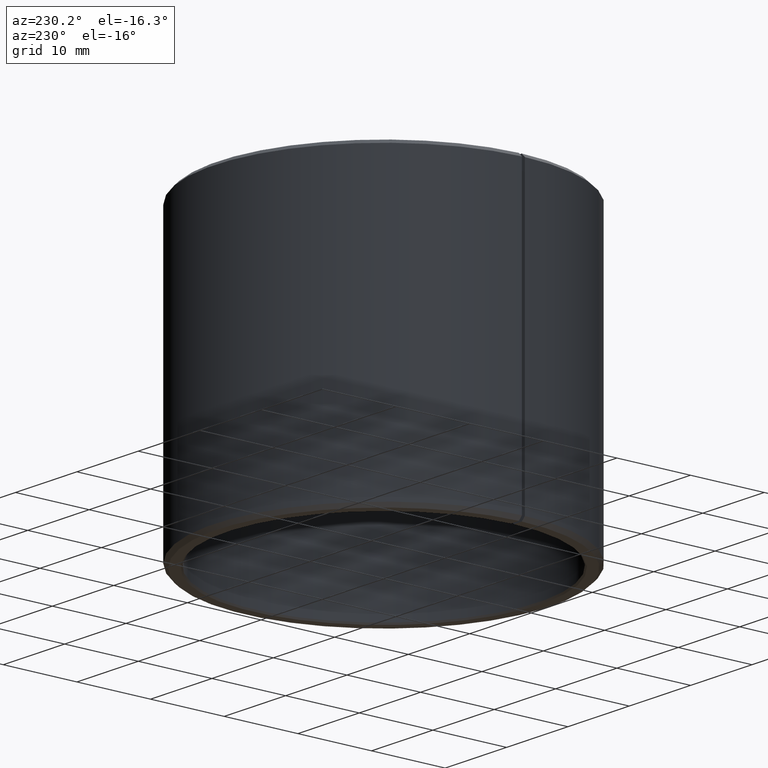
[diagram: clean part render]
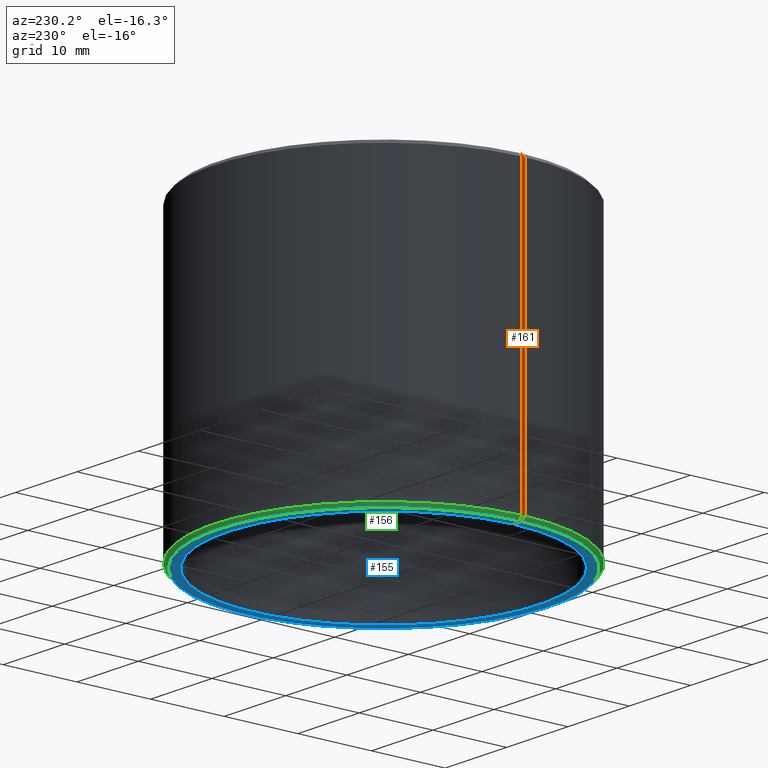
[diagram: same view with three faces highlighted in distinct colors, each labeled with its STEP entity id]
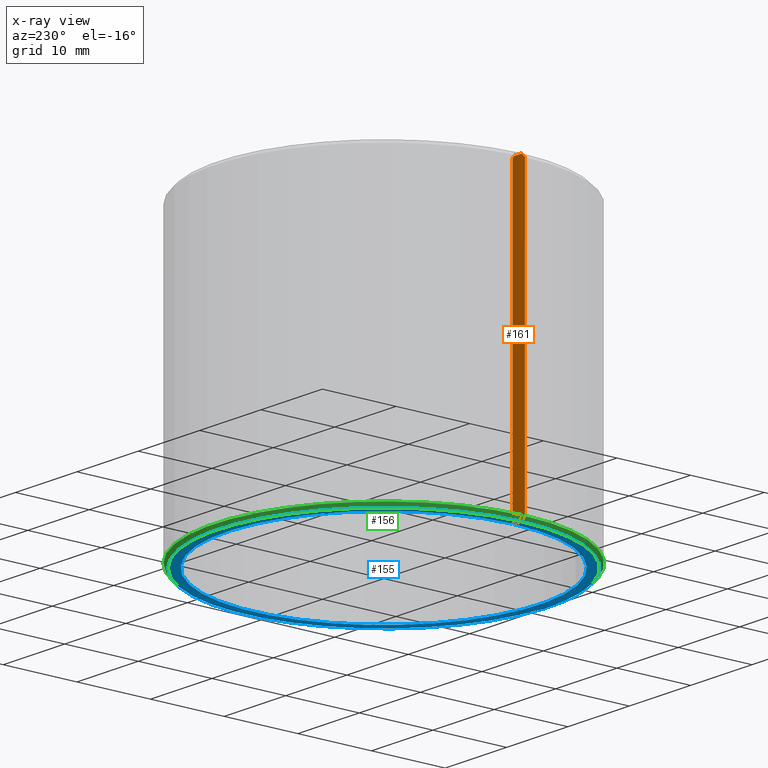
[diagram: x-ray of the same camera — body ghosted, the three highlighted faces saturated]
A machine part, auxiliary view with three faces highlighted in distinct colors.
The next image is the same camera in x-ray (body ghosted, the three faces saturated) — at least one of them is partly hidden behind the body in this view.
Their STEP definitions:

[orange] entity #161 — the highlighted planar face has unit normal (0, 1, 0).
#161=ADVANCED_FACE('',(#181),#182,.T.);
#181=FACE_OUTER_BOUND('',#202,.T.);
#182=PLANE('',#203);
#202=EDGE_LOOP('',(#262,#263,#264,#265,#266,#267,#268,#269));
#203=AXIS2_PLACEMENT_3D('',#270,#271,#272);
#262=ORIENTED_EDGE('',*,*,#306,.T.);
#263=ORIENTED_EDGE('',*,*,#285,.T.);
#264=ORIENTED_EDGE('',*,*,#289,.T.);
#265=ORIENTED_EDGE('',*,*,#292,.T.);
#266=ORIENTED_EDGE('',*,*,#295,.T.);
#267=ORIENTED_EDGE('',*,*,#298,.T.);
#268=ORIENTED_EDGE('',*,*,#301,.T.);
#269=ORIENTED_EDGE('',*,*,#305,.T.);
#270=CARTESIAN_POINT('',(-3.46944695195362E-018,-0.006,0.0));
#271=DIRECTION('',(1.0,0.0,0.0));
#272=DIRECTION('',(0.0,0.0,-1.0));
#285=EDGE_CURVE('',#311,#309,#312,.T.);
#289=EDGE_CURVE('',#309,#317,#319,.T.);
#292=EDGE_CURVE('',#317,#322,#324,.T.);
#295=EDGE_CURVE('',#322,#327,#329,.T.);
#298=EDGE_CURVE('',#327,#332,#334,.T.);
#301=EDGE_CURVE('',#332,#337,#339,.T.);
#305=EDGE_CURVE('',#337,#343,#345,.T.);
#306=EDGE_CURVE('',#343,#311,#346,.T.);
#309=VERTEX_POINT('',#349);
#311=VERTEX_POINT('',#351);
#312=LINE('',#352,#353);
#317=VERTEX_POINT('',#359);
#319=LINE('',#361,#362);
#322=VERTEX_POINT('',#366);
#324=LINE('',#368,#369);
#327=VERTEX_POINT('',#373);
#329=LINE('',#375,#376);
#332=VERTEX_POINT('',#380);
#334=LINE('',#382,#383);
#337=VERTEX_POINT('',#387);
#339=LINE('',#389,#390);
#343=VERTEX_POINT('',#396);
#345=LINE('',#398,#399);
#346=LINE('',#400,#401);
#349=CARTESIAN_POINT('',(-3.46944695195362E-018,0.021,0.0002));
#351=CARTESIAN_POINT('',(-6.07153216591882E-018,0.021,0.0398));
#352=CARTESIAN_POINT('',(-6.07153216591882E-018,0.021,0.0398));
#353=VECTOR('',#407,1.0);
#359=CARTESIAN_POINT('',(-3.46944695195362E-018,0.0212,9.21571846612679E-019));
#361=CARTESIAN_POINT('',(-3.46944695195362E-018,0.021,0.0002));
#362=VECTOR('',#415,1.0);
#366=CARTESIAN_POINT('',(-3.46944695195362E-018,0.0225,1.02999206386123E-018));
#368=CARTESIAN_POINT('',(-3.46944695195362E-018,0.0212,8.88767926719187E-019));
#369=VECTOR('',#420,1.0);
#373=CARTESIAN_POINT('',(-3.46944695195362E-018,0.023,0.0005));
#375=CARTESIAN_POINT('',(-3.46944695195362E-018,0.0225,1.02999206386123E-018));
#376=VECTOR('',#425,1.0);
#380=CARTESIAN_POINT('',(-6.07153216591882E-018,0.023,0.0395));
#382=CARTESIAN_POINT('',(-3.46944695195362E-018,0.023,0.0005));
#383=VECTOR('',#430,1.0);
#387=CARTESIAN_POINT('',(-6.07153216591882E-018,0.0225,0.04));
#389=CARTESIAN_POINT('',(-6.07153216591882E-018,0.023,0.0395));
#390=VECTOR('',#435,1.0);
#396=CARTESIAN_POINT('',(-6.07153216591882E-018,0.0212,0.04));
#398=CARTESIAN_POINT('',(-6.07153216591882E-018,0.0225,0.04));
#399=VECTOR('',#441,1.0);
#400=CARTESIAN_POINT('',(-6.07153216591882E-018,0.0212,0.04));
#401=VECTOR('',#442,1.0);
#407=DIRECTION('',(6.57092225748791E-017,1.75224593533011E-016,-1.0));
#415=DIRECTION('',(0.0,0.707106781186547,-0.707106781186548));
#420=DIRECTION('',(0.0,1.0,1.08633951647725E-016));
#425=DIRECTION('',(0.0,0.707106781186551,0.707106781186544));
#430=DIRECTION('',(-6.67201336914157E-017,-1.77920356510442E-016,1.0));
#435=DIRECTION('',(0.0,-0.707106781186548,0.707106781186548));
#441=DIRECTION('',(0.0,-1.0,0.0));
#442=DIRECTION('',(0.0,-0.707106781186535,-0.70710678118656));

[blue] entity #155 — the highlighted planar face has unit normal (-0, 0, -1).
#155=ADVANCED_FACE('',(#169),#170,.T.);
#169=FACE_OUTER_BOUND('',#190,.T.);
#170=PLANE('',#191);
#190=EDGE_LOOP('',(#220,#221,#222,#223));
#191=AXIS2_PLACEMENT_3D('',#224,#225,#226);
#220=ORIENTED_EDGE('',*,*,#291,.T.);
#221=ORIENTED_EDGE('',*,*,#292,.F.);
#222=ORIENTED_EDGE('',*,*,#288,.F.);
#223=ORIENTED_EDGE('',*,*,#293,.T.);
#224=CARTESIAN_POINT('',(0.000369991016470408,0.0211967711373155,9.98437370938642E-019));
#225=DIRECTION('',(6.12323399573677E-017,0.0,-1.0));
#226=DIRECTION('',(-1.0,0.0,-6.12323399573677E-017));
#288=EDGE_CURVE('',#316,#317,#318,.T.);
#291=EDGE_CURVE('',#321,#322,#323,.T.);
#292=EDGE_CURVE('',#317,#322,#324,.T.);
#293=EDGE_CURVE('',#316,#321,#325,.T.);
#316=VERTEX_POINT('',#358);
#317=VERTEX_POINT('',#359);
#318=CIRCLE('',#360,0.0212);
#321=VERTEX_POINT('',#365);
#322=VERTEX_POINT('',#366);
#323=CIRCLE('',#367,0.0225);
#324=LINE('',#368,#369);
#325=LINE('',#370,#371);
#358=CARTESIAN_POINT('',(0.000369991016470408,0.0211967711373155,9.44227262314367E-019));
#359=CARTESIAN_POINT('',(-3.46944695195362E-018,0.0212,9.21571846612679E-019));
#360=AXIS2_PLACEMENT_3D('',#412,#413,#414);
#365=CARTESIAN_POINT('',(0.000392679144838877,0.0224965731410188,1.05403672675217E-018));
#366=CARTESIAN_POINT('',(-3.46944695195362E-018,0.0225,1.02999206386123E-018));
#367=AXIS2_PLACEMENT_3D('',#417,#418,#419);
#368=CARTESIAN_POINT('',(-3.46944695195362E-018,0.0212,8.88767926719187E-019));
#369=VECTOR('',#420,1.0);
#370=CARTESIAN_POINT('',(0.000369991016470408,0.0211967711373155,9.11423342420875E-019));
#371=VECTOR('',#421,1.0);
#412=CARTESIAN_POINT('',(-3.46944695195362E-018,-2.60208521396521E-018,9.21571846612679E-019));
#413=DIRECTION('',(6.12323399573677E-017,0.0,-1.0));
#414=DIRECTION('',(-1.0,0.0,-6.12323399573677E-017));
#417=CARTESIAN_POINT('',(-3.46944695195362E-018,-2.60208521396521E-018,1.02999206386123E-018));
#418=DIRECTION('',(6.12323399573677E-017,0.0,-1.0));
#419=DIRECTION('',(-1.0,0.0,-6.12323399573677E-017));
#420=DIRECTION('',(0.0,1.0,1.08633951647725E-016));
#421=DIRECTION('',(0.0174524064372836,0.999847695156391,1.09702603331767E-016));

[green] entity #156 — the highlighted conical surface has half-angle 45 deg.
#156=ADVANCED_FACE('',(#171),#172,.T.);
#171=FACE_OUTER_BOUND('',#192,.T.);
#172=CONICAL_SURFACE('',#193,0.0225,0.785398163397456);
#192=EDGE_LOOP('',(#227,#228,#229,#230));
#193=AXIS2_PLACEMENT_3D('',#231,#232,#233);
#227=ORIENTED_EDGE('',*,*,#294,.T.);
#228=ORIENTED_EDGE('',*,*,#295,.F.);
#229=ORIENTED_EDGE('',*,*,#291,.F.);
#230=ORIENTED_EDGE('',*,*,#296,.T.);
#231=CARTESIAN_POINT('',(-3.46944695195362E-018,-2.60208521396521E-018,1.02999206386123E-018));
#232=DIRECTION('',(-6.12323399573677E-017,0.0,1.0));
#233=DIRECTION('',(1.0,0.0,6.12323399573677E-017));
#291=EDGE_CURVE('',#321,#322,#323,.T.);
#294=EDGE_CURVE('',#326,#327,#328,.T.);
#295=EDGE_CURVE('',#322,#327,#329,.T.);
#296=EDGE_CURVE('',#321,#326,#330,.T.);
#321=VERTEX_POINT('',#365);
#322=VERTEX_POINT('',#366);
#323=CIRCLE('',#367,0.0225);
#326=VERTEX_POINT('',#372);
#327=VERTEX_POINT('',#373);
#328=CIRCLE('',#374,0.023);
#329=LINE('',#375,#376);
#330=LINE('',#377,#378);
#365=CARTESIAN_POINT('',(0.000392679144838877,0.0224965731410188,1.05403672675217E-018));
#366=CARTESIAN_POINT('',(-3.46944695195362E-018,0.0225,1.02999206386123E-018));
#367=AXIS2_PLACEMENT_3D('',#417,#418,#419);
#372=CARTESIAN_POINT('',(0.000401405348057519,0.022996496988597,0.0005));
#373=CARTESIAN_POINT('',(-3.46944695195362E-018,0.023,0.0005));
#374=AXIS2_PLACEMENT_3D('',#422,#423,#424);
#375=CARTESIAN_POINT('',(-3.46944695195362E-018,0.0225,1.02999206386123E-018));
#376=VECTOR('',#425,1.0);
#377=CARTESIAN_POINT('',(0.000392679144838877,0.0224965731410188,1.05403672675217E-018));
#378=VECTOR('',#426,1.0);
#417=CARTESIAN_POINT('',(-3.46944695195362E-018,-2.60208521396521E-018,1.02999206386123E-018));
#418=DIRECTION('',(6.12323399573677E-017,0.0,-1.0));
#419=DIRECTION('',(-1.0,0.0,-6.12323399573677E-017));
#422=CARTESIAN_POINT('',(-3.46944695195362E-018,-2.60208521396521E-018,0.0005));
#423=DIRECTION('',(6.12323399573677E-017,0.0,-1.0));
#424=DIRECTION('',(-1.0,0.0,-6.12323399573677E-017));
#425=DIRECTION('',(0.0,0.707106781186551,0.707106781186544));
#426=DIRECTION('',(0.012340714939827,0.706999085398828,0.707106781186544));